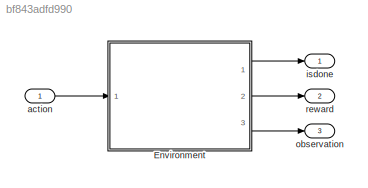
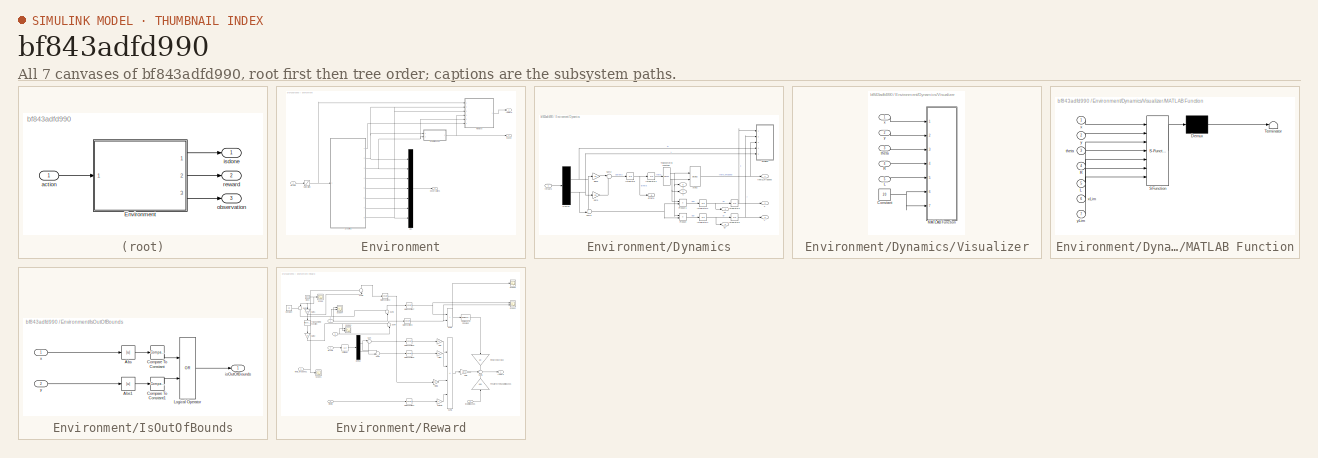
[diagram: thumbnail index - all 7 canvases of the model, root first then tree order]
MODEL slx_bf843adfd990
KIND model
CONFIG AbsTol = auto
CONFIG EnableMultiTasking = off
CONFIG FixedStep = auto
CONFIG MaxStep = auto
CONFIG MinStep = auto
CONFIG RelTol = 1e-3
CONFIG SampleTimeConstraint = Unconstrained
CONFIG SolverName = VariableStepAuto
CONFIG StartTime = 0.0
CONFIG StopTime = 30
BLOCK [SubSystem] Environment
  Ports = [1, 3]
  RequestExecContextInheritance = off
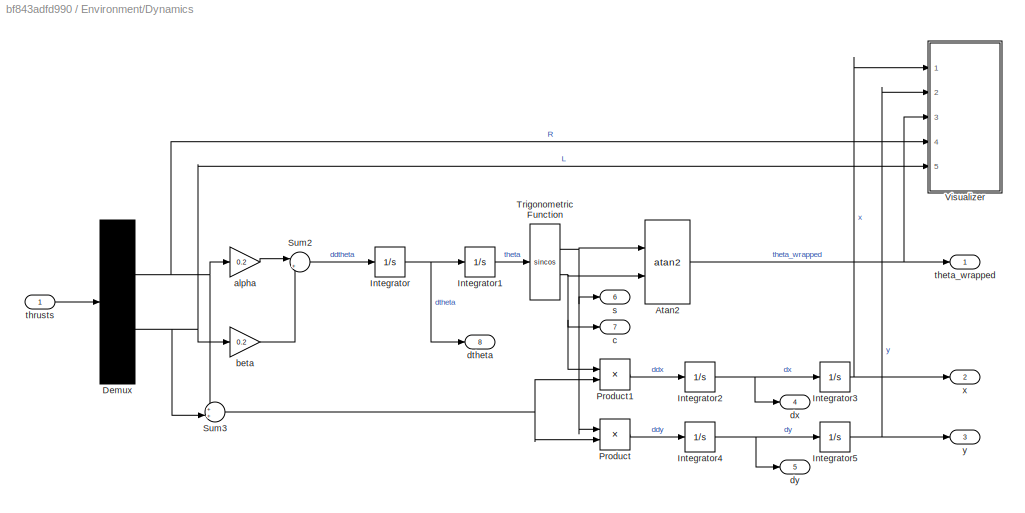
BLOCK [SubSystem] Environment/Dynamics
  Ports = [1, 8]
  RequestExecContextInheritance = off
BLOCK [Trigonometry] Environment/Dynamics/Atan2
  Operator = atan2
  Ports = [2, 1]
BLOCK [Demux] Environment/Dynamics/Demux
  Outputs = 2
  Ports = [1, 2]
BLOCK [Integrator] Environment/Dynamics/Integrator
  Ports = [1, 1]
BLOCK [Integrator] Environment/Dynamics/Integrator1
  InitialCondition = theta0
  Ports = [1, 1]
BLOCK [Integrator] Environment/Dynamics/Integrator2
  Ports = [1, 1]
BLOCK [Integrator] Environment/Dynamics/Integrator3
  InitialCondition = x0
  Ports = [1, 1]
BLOCK [Integrator] Environment/Dynamics/Integrator4
  Ports = [1, 1]
BLOCK [Integrator] Environment/Dynamics/Integrator5
  InitialCondition = y0
  Ports = [1, 1]
BLOCK [Product] Environment/Dynamics/Product
  Ports = [2, 1]
BLOCK [Product] Environment/Dynamics/Product1
  Ports = [2, 1]
BLOCK [Sum] Environment/Dynamics/Sum2
  Inputs = |+-
  Ports = [2, 1]
BLOCK [Sum] Environment/Dynamics/Sum3
  Inputs = ++|
  Ports = [2, 1]
BLOCK [Trigonometry] Environment/Dynamics/Trigonometric Function
  Operator = sincos
  Ports = [1, 2]
BLOCK [SubSystem] Environment/Dynamics/Visualizer
  Ports = [5]
  RequestExecContextInheritance = off
BLOCK [Constant] Environment/Dynamics/Visualizer/Constant
  Value = 20
BLOCK [Inport] Environment/Dynamics/Visualizer/L
  Port = 5
BLOCK [SubSystem] Environment/Dynamics/Visualizer/MATLAB Function
  ErrorFcn = Stateflow.Translate.translate
  PermitHierarchicalResolution = ExplicitOnly
  Ports = [7]
  RequestExecContextInheritance = off
  SFBlockType = MATLAB Function
  TreatAsAtomicUnit = on
BLOCK [Demux] Environment/Dynamics/Visualizer/MATLAB Function/ Demux 
  Outputs = 1
  Ports = [1, 1]
BLOCK [S-Function] Environment/Dynamics/Visualizer/MATLAB Function/ SFunction 
  EnableBusSupport = on
  FunctionName = sf_sfun
  PortCounts = [7 1]
  Ports = [7, 1]
  SFcnIsStateOwnerBlock = off
  SFunctionDeploymentMode = off
  Tag = Stateflow S-Function 2
BLOCK [Terminator] Environment/Dynamics/Visualizer/MATLAB Function/ Terminator 
BLOCK [Inport] Environment/Dynamics/Visualizer/MATLAB Function/L
  Port = 5
BLOCK [Inport] Environment/Dynamics/Visualizer/MATLAB Function/R
  Port = 4
BLOCK [Inport] Environment/Dynamics/Visualizer/MATLAB Function/theta
  Port = 3
BLOCK [Inport] Environment/Dynamics/Visualizer/MATLAB Function/x
BLOCK [Inport] Environment/Dynamics/Visualizer/MATLAB Function/xLim
  Port = 6
BLOCK [Inport] Environment/Dynamics/Visualizer/MATLAB Function/y
  Port = 2
BLOCK [Inport] Environment/Dynamics/Visualizer/MATLAB Function/yLim
  Port = 7
BLOCK [Inport] Environment/Dynamics/Visualizer/R
  Port = 4
BLOCK [Inport] Environment/Dynamics/Visualizer/theta
  Port = 3
BLOCK [Inport] Environment/Dynamics/Visualizer/x
BLOCK [Inport] Environment/Dynamics/Visualizer/y
  Port = 2
BLOCK [Gain] Environment/Dynamics/alpha
  Gain = 0.2
BLOCK [Gain] Environment/Dynamics/beta
  Gain = 0.2
BLOCK [Outport] Environment/Dynamics/c
  Port = 7
  VectorParamsAs1DForOutWhenUnconnected = off
BLOCK [Outport] Environment/Dynamics/dtheta
  Port = 8
  VectorParamsAs1DForOutWhenUnconnected = off
BLOCK [Outport] Environment/Dynamics/dx
  Port = 4
  VectorParamsAs1DForOutWhenUnconnected = off
BLOCK [Outport] Environment/Dynamics/dy
  Port = 5
  VectorParamsAs1DForOutWhenUnconnected = off
BLOCK [Outport] Environment/Dynamics/s
  Port = 6
  VectorParamsAs1DForOutWhenUnconnected = off
BLOCK [Outport] Environment/Dynamics/theta_wrapped
  VectorParamsAs1DForOutWhenUnconnected = off
BLOCK [Inport] Environment/Dynamics/thrusts
BLOCK [Outport] Environment/Dynamics/x
  Port = 2
  VectorParamsAs1DForOutWhenUnconnected = off
BLOCK [Outport] Environment/Dynamics/y
  Port = 3
  VectorParamsAs1DForOutWhenUnconnected = off
BLOCK [SubSystem] Environment/IsOutOfBounds
  Ports = [2, 1]
  RequestExecContextInheritance = off
BLOCK [Abs] Environment/IsOutOfBounds/Abs
  SaturateOnIntegerOverflow = off
BLOCK [Abs] Environment/IsOutOfBounds/Abs1
  SaturateOnIntegerOverflow = off
BLOCK [Reference] Environment/IsOutOfBounds/Compare To Constant  REF=simulink/Logic and Bit
Operations/Compare
To Constant
  Ports = [1, 1]
  SourceBlock = simulink/Logic and Bit\nOperations/Compare\nTo Constant
  SourceProductBaseCode = SL
  SourceType = Compare To Constant
BLOCK [Reference] Environment/IsOutOfBounds/Compare To Constant1  REF=simulink/Logic and Bit
Operations/Compare
To Constant
  Ports = [1, 1]
  SourceBlock = simulink/Logic and Bit\nOperations/Compare\nTo Constant
  SourceProductBaseCode = SL
  SourceType = Compare To Constant
BLOCK [Logic] Environment/IsOutOfBounds/Logical Operator
  AllPortsSameDT = off
  Operator = OR
  OutDataTypeStr = boolean
  Ports = [2, 1]
BLOCK [Outport] Environment/IsOutOfBounds/isOutOfBounds
  VectorParamsAs1DForOutWhenUnconnected = off
BLOCK [Inport] Environment/IsOutOfBounds/x
BLOCK [Inport] Environment/IsOutOfBounds/y
  Port = 2
BLOCK [Mux] Environment/Mux
  DisplayOption = bar
  Inputs = 7
  Ports = [7, 1]
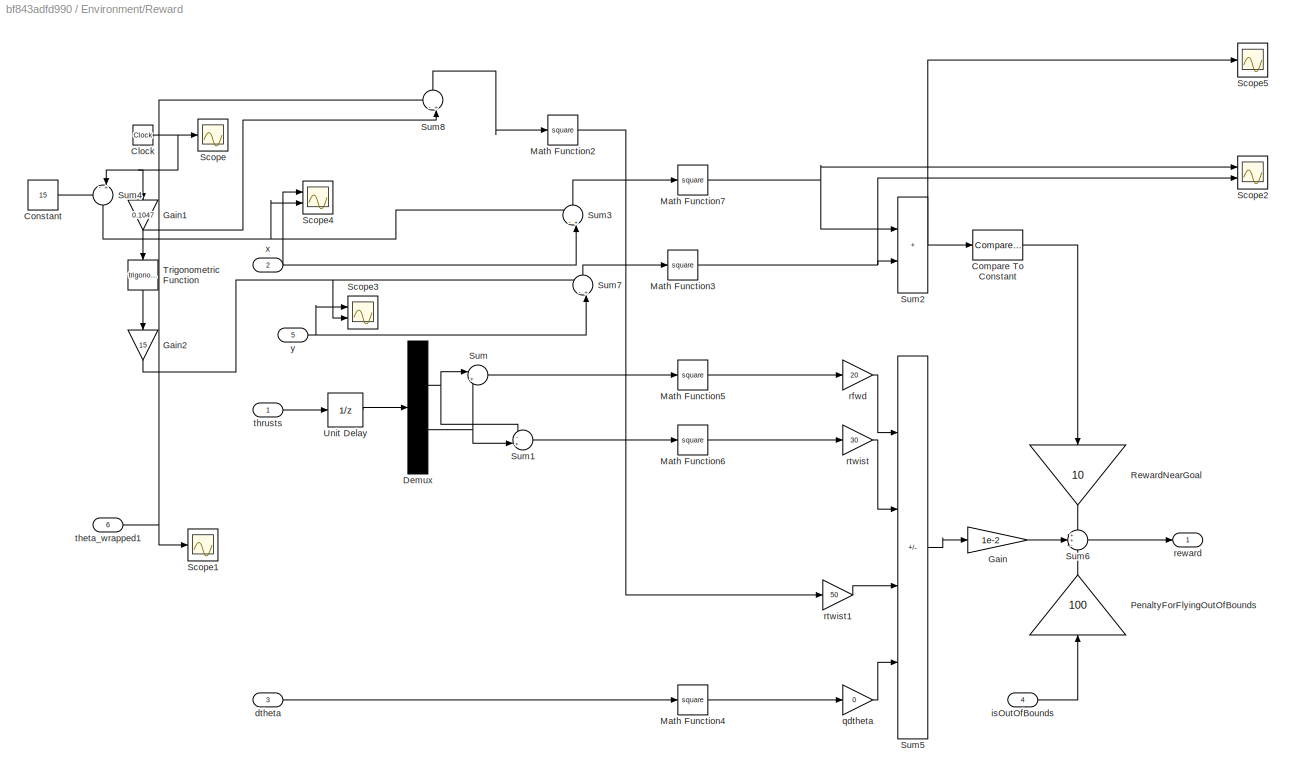
BLOCK [SubSystem] Environment/Reward
  Ports = [6, 1]
  RequestExecContextInheritance = off
BLOCK [Clock] Environment/Reward/Clock
  Decimation = 30
BLOCK [Reference] Environment/Reward/Compare To Constant  REF=simulink/Logic and Bit
Operations/Compare
To Constant
  Ports = [1, 1]
  SourceBlock = simulink/Logic and Bit\nOperations/Compare\nTo Constant
  SourceProductBaseCode = SL
  SourceType = Compare To Constant
BLOCK [Constant] Environment/Reward/Constant
  Value = 15
BLOCK [Demux] Environment/Reward/Demux
  Outputs = 2
  Ports = [1, 2]
BLOCK [Gain] Environment/Reward/Gain
  Gain = 1e-2
BLOCK [Gain] Environment/Reward/Gain1
  Gain = 0.1047
  NameLocation = left
BLOCK [Gain] Environment/Reward/Gain2
  Gain = 15
  NameLocation = left
BLOCK [Math] Environment/Reward/Math Function2
  Operator = square
  Ports = [1, 1]
  SignedPower = on
BLOCK [Math] Environment/Reward/Math Function3
  Operator = square
  Ports = [1, 1]
  SignedPower = on
BLOCK [Math] Environment/Reward/Math Function4
  Operator = square
  Ports = [1, 1]
  SignedPower = on
BLOCK [Math] Environment/Reward/Math Function5
  Operator = square
  Ports = [1, 1]
  SignedPower = on
BLOCK [Math] Environment/Reward/Math Function6
  Operator = square
  Ports = [1, 1]
  SignedPower = on
BLOCK [Math] Environment/Reward/Math Function7
  Operator = square
  Ports = [1, 1]
  SignedPower = on
BLOCK [Gain] Environment/Reward/PenaltyForFlyingOutOfBounds
  Gain = 100
  NameLocation = right
BLOCK [Gain] Environment/Reward/RewardNearGoal
  Gain = 10
  NameLocation = left
BLOCK [Scope] Environment/Reward/Scope
  Floating = off
  NumInputPorts = 1
  Ports = [1]
  ScopeSpecificationString = Simulink.scopes.TimeScopeBlockCfg('CurrentConfiguration', extmgr.ConfigurationSet(extmgr.Configuration('Core','General UI',true),extmgr.Configuration('Core','Source UI',true),extmgr.Configuration('Sources','WiredSimulink',true),extmgr.Configuration('Visuals','Time Domain',true,'SerializedDisplays',{struct('MinYLimReal','-0.65','MaxYLimReal','30.00000','YLabelReal','','MinYLimMag','0.00000','MaxYLi...<+1402ch>
BLOCK [Scope] Environment/Reward/Scope1
  Floating = off
  NumInputPorts = 1
  Ports = [1]
  ScopeSpecificationString = Simulink.scopes.TimeScopeBlockCfg('CurrentConfiguration', extmgr.ConfigurationSet(extmgr.Configuration('Core','General UI',true),extmgr.Configuration('Core','Source UI',true),extmgr.Configuration('Sources','WiredSimulink',true,'DataLoggingVariableName','ScopeData1'),extmgr.Configuration('Visuals','Time Domain',true,'SerializedDisplays',{struct('MinYLimReal','-10','MaxYLimReal','10','YLabelReal',''...<+1438ch>
BLOCK [Scope] Environment/Reward/Scope2
  Floating = off
  NumInputPorts = 2
  Ports = [2]
  ScopeSpecificationString = Simulink.scopes.TimeScopeBlockCfg('CurrentConfiguration', extmgr.ConfigurationSet(extmgr.Configuration('Core','General UI',true),extmgr.Configuration('Core','Source UI',true),extmgr.Configuration('Sources','WiredSimulink',true,'DataLoggingVariableName','ScopeData1'),extmgr.Configuration('Visuals','Time Domain',true,'SerializedDisplays',{struct('MinYLimReal','-20','MaxYLimReal','50','YLabelReal',''...<+1483ch>
BLOCK [Scope] Environment/Reward/Scope3
  Floating = off
  NumInputPorts = 2
  Ports = [2]
  ScopeSpecificationString = Simulink.scopes.TimeScopeBlockCfg('CurrentConfiguration', extmgr.ConfigurationSet(extmgr.Configuration('Core','General UI',true),extmgr.Configuration('Core','Source UI',true),extmgr.Configuration('Sources','WiredSimulink',true,'DataLoggingVariableName','ScopeData2'),extmgr.Configuration('Visuals','Time Domain',true,'SerializedDisplays',{struct('MinYLimReal','-20','MaxYLimReal','20','YLabelReal',''...<+1435ch>
BLOCK [Scope] Environment/Reward/Scope4
  Floating = off
  NumInputPorts = 2
  Ports = [2]
  ScopeSpecificationString = Simulink.scopes.TimeScopeBlockCfg('CurrentConfiguration', extmgr.ConfigurationSet(extmgr.Configuration('Core','General UI',true),extmgr.Configuration('Core','Source UI',true),extmgr.Configuration('Sources','WiredSimulink',true,'DataLoggingVariableName','ScopeData3'),extmgr.Configuration('Visuals','Time Domain',true,'SerializedDisplays',{struct('MinYLimReal','-20','MaxYLimReal','20','YLabelReal',''...<+1434ch>
BLOCK [Scope] Environment/Reward/Scope5
  Floating = off
  NumInputPorts = 1
  Ports = [1]
  ScopeSpecificationString = Simulink.scopes.TimeScopeBlockCfg('CurrentConfiguration', extmgr.ConfigurationSet(extmgr.Configuration('Core','General UI',true),extmgr.Configuration('Core','Source UI',true),extmgr.Configuration('Sources','WiredSimulink',true,'DataLoggingVariableName','ScopeData2'),extmgr.Configuration('Visuals','Time Domain',true,'SerializedDisplays',{struct('MinYLimReal','-50','MaxYLimReal','50','YLabelReal',''...<+1473ch>
BLOCK [Sum] Environment/Reward/Sum
  Inputs = |++
  Ports = [2, 1]
BLOCK [Sum] Environment/Reward/Sum1
  Inputs = -+|
  Ports = [2, 1]
BLOCK [Sum] Environment/Reward/Sum2
  IconShape = rectangular
  Ports = [2, 1]
BLOCK [Sum] Environment/Reward/Sum3
  Inputs = -+|
  NameLocation = right
  Ports = [2, 1]
BLOCK [Sum] Environment/Reward/Sum4
  Inputs = -+|
  NameLocation = left
  Ports = [2, 1]
BLOCK [Sum] Environment/Reward/Sum5
  IconShape = rectangular
  Inputs = ----
  Ports = [4, 1]
BLOCK [Sum] Environment/Reward/Sum6
  Inputs = ++-
  Ports = [3, 1]
BLOCK [Sum] Environment/Reward/Sum7
  Inputs = -+|
  NameLocation = right
  Ports = [2, 1]
BLOCK [Sum] Environment/Reward/Sum8
  Inputs = -+|
  NameLocation = right
  Ports = [2, 1]
BLOCK [Trigonometry] Environment/Reward/Trigonometric Function
  NameLocation = left
  Ports = [1, 1]
BLOCK [UnitDelay] Environment/Reward/Unit Delay
  HasFrameUpgradeWarning = on
  SampleTime = Ts
BLOCK [Inport] Environment/Reward/dtheta
  Port = 3
BLOCK [Inport] Environment/Reward/isOutOfBounds
  Port = 4
BLOCK [Gain] Environment/Reward/qdtheta
  Gain = 0
BLOCK [Outport] Environment/Reward/reward
  VectorParamsAs1DForOutWhenUnconnected = off
BLOCK [Gain] Environment/Reward/rfwd
  Gain = 20
BLOCK [Gain] Environment/Reward/rtwist
  Gain = 30
BLOCK [Gain] Environment/Reward/rtwist1
  Gain = 50
BLOCK [Inport] Environment/Reward/theta_wrapped1
  Port = 6
BLOCK [Inport] Environment/Reward/thrusts
BLOCK [Inport] Environment/Reward/x
  Port = 2
BLOCK [Inport] Environment/Reward/y
  Port = 5
BLOCK [Saturate] Environment/Saturation
  LowerLimit = -1
  UpperLimit = 1
BLOCK [Outport] Environment/isdone
  VectorParamsAs1DForOutWhenUnconnected = off
BLOCK [Outport] Environment/observations
  Port = 3
  VectorParamsAs1DForOutWhenUnconnected = off
BLOCK [Outport] Environment/reward
  Port = 2
  VectorParamsAs1DForOutWhenUnconnected = off
BLOCK [Inport] Environment/thrusts
BLOCK [Inport] action
BLOCK [Outport] isdone
  VectorParamsAs1DForOutWhenUnconnected = off
BLOCK [Outport] observation
  Port = 3
  VectorParamsAs1DForOutWhenUnconnected = off
BLOCK [Outport] reward
  Port = 2
  VectorParamsAs1DForOutWhenUnconnected = off
NET Environment/Dynamics/Atan2:1 -> Environment/Dynamics/Visualizer:3, Environment/Dynamics/theta_wrapped:1
NET Environment/Dynamics/Demux:1 -> Environment/Dynamics/Sum3:1, Environment/Dynamics/Visualizer:4, Environment/Dynamics/alpha:1
NET Environment/Dynamics/Demux:2 -> Environment/Dynamics/Sum3:2, Environment/Dynamics/Visualizer:5, Environment/Dynamics/beta:1
LINE Environment/Dynamics/Integrator1:1 -> Environment/Dynamics/Trigonometric Function:1
NET Environment/Dynamics/Integrator2:1 -> Environment/Dynamics/Integrator3:1, Environment/Dynamics/dx:1
NET Environment/Dynamics/Integrator3:1 -> Environment/Dynamics/Visualizer:1, Environment/Dynamics/x:1
NET Environment/Dynamics/Integrator4:1 -> Environment/Dynamics/Integrator5:1, Environment/Dynamics/dy:1
NET Environment/Dynamics/Integrator5:1 -> Environment/Dynamics/Visualizer:2, Environment/Dynamics/y:1
NET Environment/Dynamics/Integrator:1 -> Environment/Dynamics/Integrator1:1, Environment/Dynamics/dtheta:1
LINE Environment/Dynamics/Product1:1 -> Environment/Dynamics/Integrator2:1
LINE Environment/Dynamics/Product:1 -> Environment/Dynamics/Integrator4:1
LINE Environment/Dynamics/Sum2:1 -> Environment/Dynamics/Integrator:1
NET Environment/Dynamics/Sum3:1 -> Environment/Dynamics/Product1:2, Environment/Dynamics/Product:2
NET Environment/Dynamics/Trigonometric Function:1 -> Environment/Dynamics/Atan2:1, Environment/Dynamics/Product:1, Environment/Dynamics/s:1
NET Environment/Dynamics/Trigonometric Function:2 -> Environment/Dynamics/Atan2:2, Environment/Dynamics/Product1:1, Environment/Dynamics/c:1
NET Environment/Dynamics/Visualizer/Constant:1 -> Environment/Dynamics/Visualizer/MATLAB Function:6, Environment/Dynamics/Visualizer/MATLAB Function:7
LINE Environment/Dynamics/Visualizer/L:1 -> Environment/Dynamics/Visualizer/MATLAB Function:5
LINE Environment/Dynamics/Visualizer/R:1 -> Environment/Dynamics/Visualizer/MATLAB Function:4
LINE Environment/Dynamics/Visualizer/theta:1 -> Environment/Dynamics/Visualizer/MATLAB Function:3
LINE Environment/Dynamics/Visualizer/x:1 -> Environment/Dynamics/Visualizer/MATLAB Function:1
LINE Environment/Dynamics/Visualizer/y:1 -> Environment/Dynamics/Visualizer/MATLAB Function:2
LINE Environment/Dynamics/alpha:1 -> Environment/Dynamics/Sum2:1
LINE Environment/Dynamics/beta:1 -> Environment/Dynamics/Sum2:2
LINE Environment/Dynamics/thrusts:1 -> Environment/Dynamics/Demux:1
LINE Environment/Dynamics:1 -> Environment/Reward:6
NET Environment/Dynamics:2 -> Environment/IsOutOfBounds:1, Environment/Mux:1, Environment/Reward:2
NET Environment/Dynamics:3 -> Environment/IsOutOfBounds:2, Environment/Mux:2, Environment/Reward:5
LINE Environment/Dynamics:4 -> Environment/Mux:3
LINE Environment/Dynamics:5 -> Environment/Mux:4
LINE Environment/Dynamics:6 -> Environment/Mux:5
LINE Environment/Dynamics:7 -> Environment/Mux:6
NET Environment/Dynamics:8 -> Environment/Mux:7, Environment/Reward:3
LINE Environment/IsOutOfBounds/Abs1:1 -> Environment/IsOutOfBounds/Compare To Constant1:1
LINE Environment/IsOutOfBounds/Abs:1 -> Environment/IsOutOfBounds/Compare To Constant:1
LINE Environment/IsOutOfBounds/Compare To Constant1:1 -> Environment/IsOutOfBounds/Logical Operator:2
LINE Environment/IsOutOfBounds/Compare To Constant:1 -> Environment/IsOutOfBounds/Logical Operator:1
LINE Environment/IsOutOfBounds/Logical Operator:1 -> Environment/IsOutOfBounds/isOutOfBounds:1
LINE Environment/IsOutOfBounds/x:1 -> Environment/IsOutOfBounds/Abs:1
LINE Environment/IsOutOfBounds/y:1 -> Environment/IsOutOfBounds/Abs1:1
NET Environment/IsOutOfBounds:1 -> Environment/Reward:4, Environment/isdone:1
LINE Environment/Mux:1 -> Environment/observations:1
NET Environment/Reward/Clock:1 -> Environment/Reward/Gain1:1, Environment/Reward/Scope:1, Environment/Reward/Sum4:2
LINE Environment/Reward/Compare To Constant:1 -> Environment/Reward/RewardNearGoal:1
LINE Environment/Reward/Constant:1 -> Environment/Reward/Sum4:1
NET Environment/Reward/Demux:1 -> Environment/Reward/Sum1:1, Environment/Reward/Sum:1
NET Environment/Reward/Demux:2 -> Environment/Reward/Sum1:2, Environment/Reward/Sum:2
NET Environment/Reward/Gain1:1 -> Environment/Reward/Sum8:2, Environment/Reward/Trigonometric Function:1
NET Environment/Reward/Gain2:1 -> Environment/Reward/Scope3:2, Environment/Reward/Sum7:1
LINE Environment/Reward/Gain:1 -> Environment/Reward/Sum6:2
LINE Environment/Reward/Math Function2:1 -> Environment/Reward/rtwist1:1
NET Environment/Reward/Math Function3:1 -> Environment/Reward/Scope2:2, Environment/Reward/Sum2:2
LINE Environment/Reward/Math Function4:1 -> Environment/Reward/qdtheta:1
LINE Environment/Reward/Math Function5:1 -> Environment/Reward/rfwd:1
LINE Environment/Reward/Math Function6:1 -> Environment/Reward/rtwist:1
NET Environment/Reward/Math Function7:1 -> Environment/Reward/Scope2:1, Environment/Reward/Sum2:1
LINE Environment/Reward/PenaltyForFlyingOutOfBounds:1 -> Environment/Reward/Sum6:3
LINE Environment/Reward/RewardNearGoal:1 -> Environment/Reward/Sum6:1
LINE Environment/Reward/Sum1:1 -> Environment/Reward/Math Function6:1
NET Environment/Reward/Sum2:1 -> Environment/Reward/Compare To Constant:1, Environment/Reward/Scope5:1
LINE Environment/Reward/Sum3:1 -> Environment/Reward/Math Function7:1
NET Environment/Reward/Sum4:1 -> Environment/Reward/Scope4:2, Environment/Reward/Sum3:1
LINE Environment/Reward/Sum5:1 -> Environment/Reward/Gain:1
LINE Environment/Reward/Sum6:1 -> Environment/Reward/reward:1
LINE Environment/Reward/Sum7:1 -> Environment/Reward/Math Function3:1
LINE Environment/Reward/Sum8:1 -> Environment/Reward/Math Function2:1
LINE Environment/Reward/Sum:1 -> Environment/Reward/Math Function5:1
LINE Environment/Reward/Trigonometric Function:1 -> Environment/Reward/Gain2:1
LINE Environment/Reward/Unit Delay:1 -> Environment/Reward/Demux:1
LINE Environment/Reward/dtheta:1 -> Environment/Reward/Math Function4:1
LINE Environment/Reward/isOutOfBounds:1 -> Environment/Reward/PenaltyForFlyingOutOfBounds:1
LINE Environment/Reward/qdtheta:1 -> Environment/Reward/Sum5:4
LINE Environment/Reward/rfwd:1 -> Environment/Reward/Sum5:1
LINE Environment/Reward/rtwist1:1 -> Environment/Reward/Sum5:3
LINE Environment/Reward/rtwist:1 -> Environment/Reward/Sum5:2
NET Environment/Reward/theta_wrapped1:1 -> Environment/Reward/Scope1:1, Environment/Reward/Sum8:1
LINE Environment/Reward/thrusts:1 -> Environment/Reward/Unit Delay:1
NET Environment/Reward/x:1 -> Environment/Reward/Scope4:1, Environment/Reward/Sum3:2
NET Environment/Reward/y:1 -> Environment/Reward/Scope3:1, Environment/Reward/Sum7:2
LINE Environment/Reward:1 -> Environment/reward:1
NET Environment/Saturation:1 -> Environment/Dynamics:1, Environment/Reward:1
LINE Environment/thrusts:1 -> Environment/Saturation:1
LINE Environment:1 -> isdone:1
LINE Environment:2 -> reward:1
LINE Environment:3 -> observation:1
LINE action:1 -> Environment:1
note: NET lines group one-source signal fan-out (src -> all destinations, sorted); 1:1 wires keep LINE
CHART Environment/Dynamics/Visualizer/MATLAB Function states=1 transitions=1
  STATE_LABEL 'eML_blk_kernel()'
  STATE_LABEL "SCRIPT:\nfunction fcn(x,y,theta,R,L,xLim,yLim)\n%#codegen\ncoder.extrinsic('rl.env.viz.plotFlyingRobot');\nrl.env.viz.plotFlyingRobot(x,y,theta,L,R,xLim,yLim);"
CHART  states=0 transitions=0
